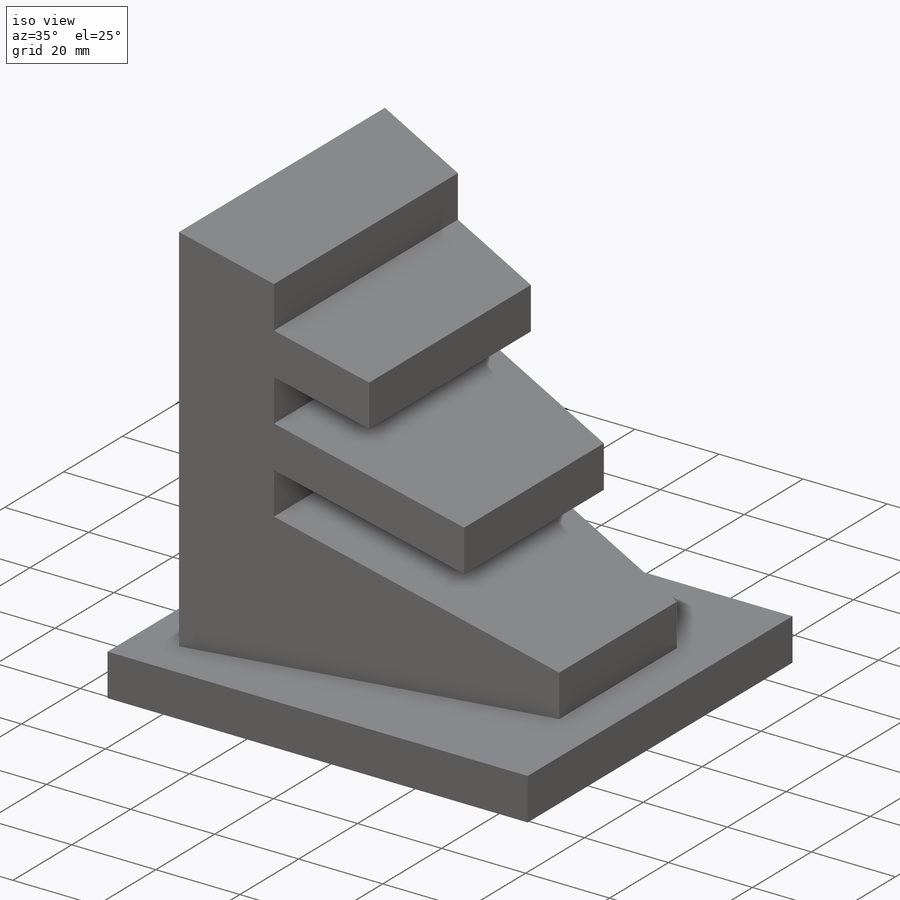
[diagram: iso view]
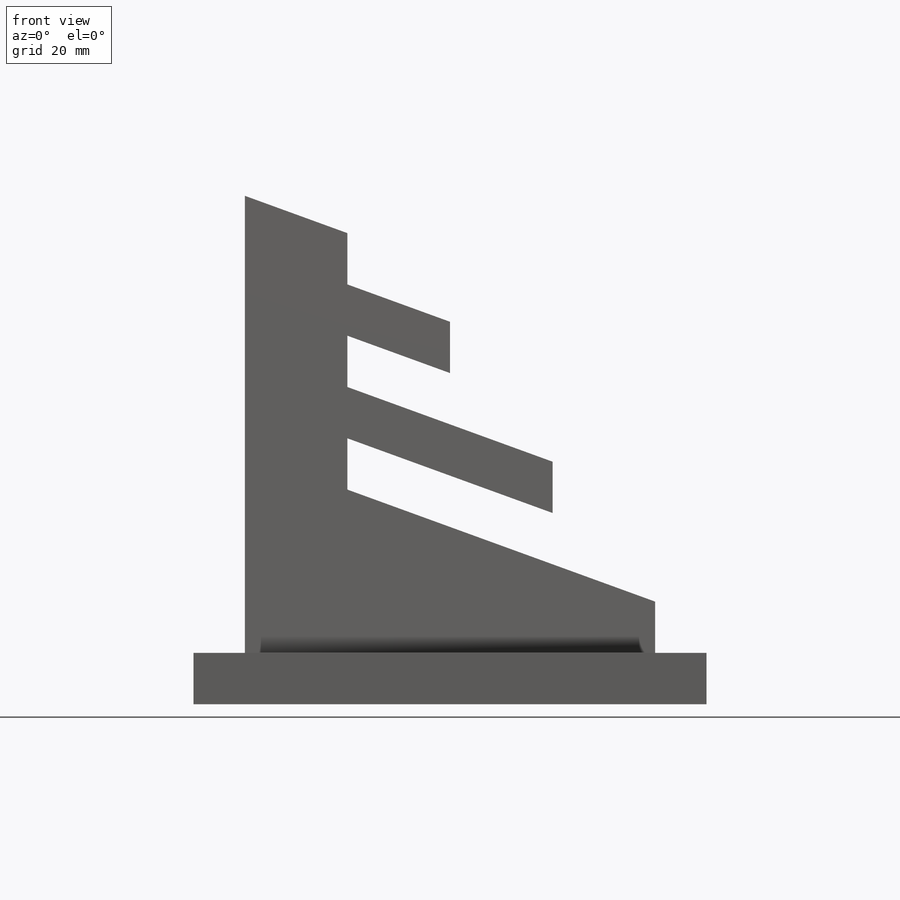
[diagram: front view]
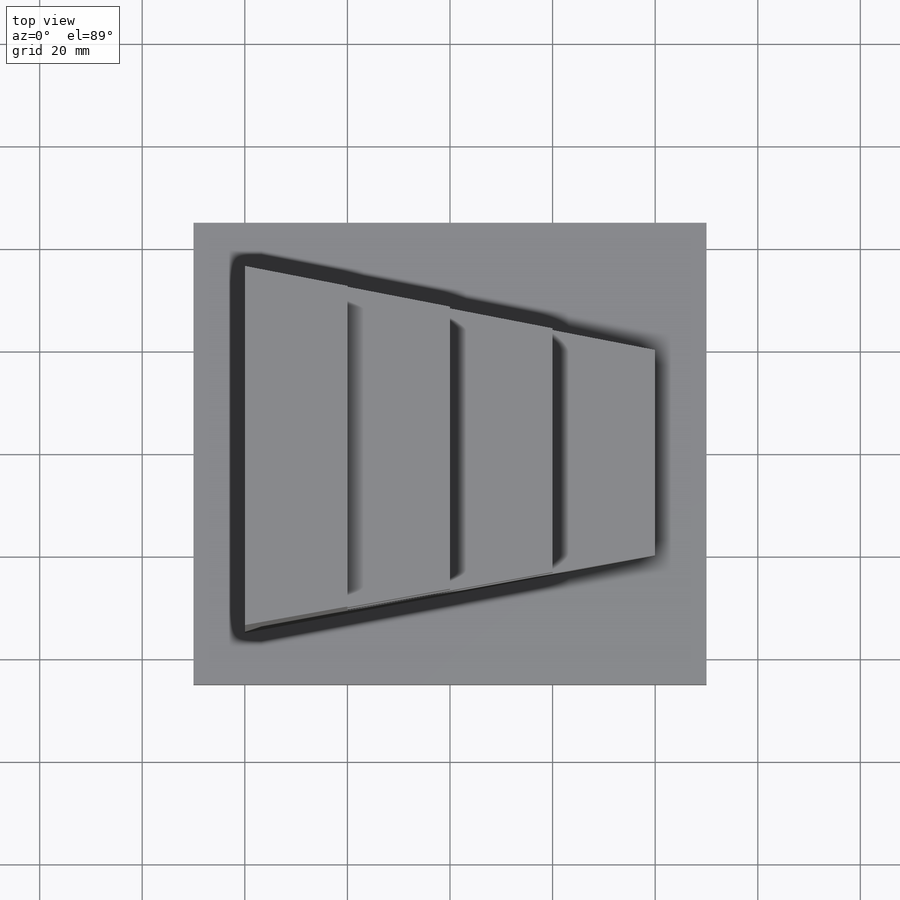
[diagram: top view]
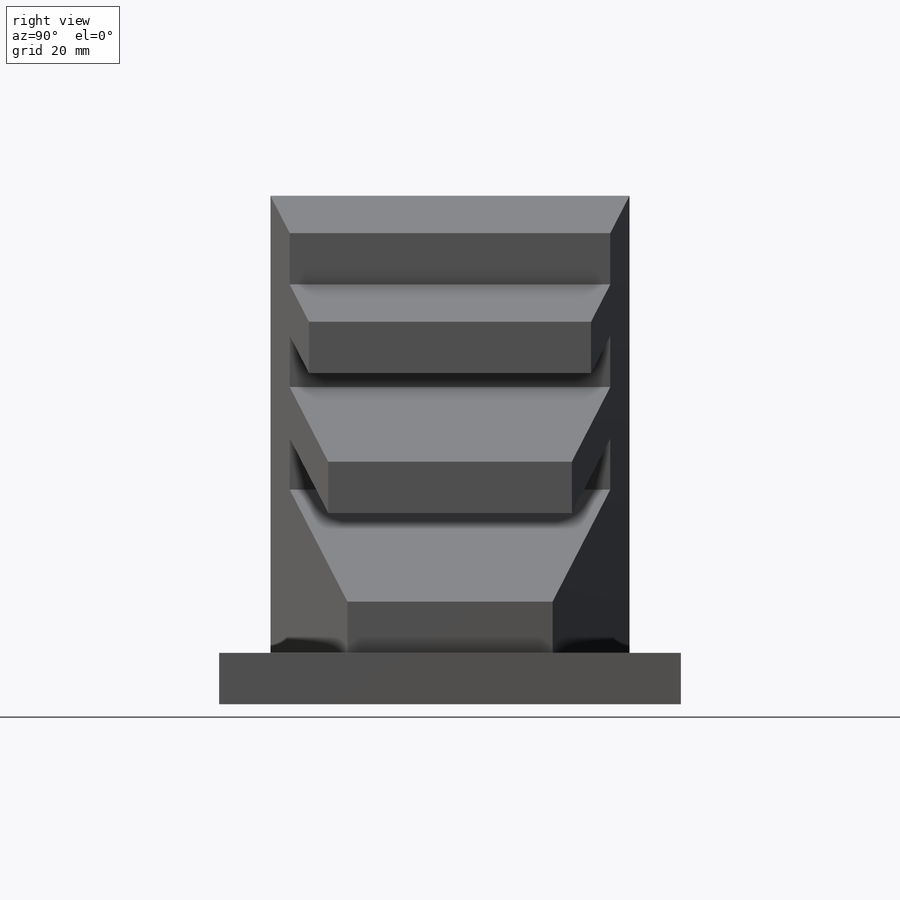
[diagram: right view]
SOLIDWORKS PART (.sldprt)
format: sldprt  version: not decoded by parser v0  size: 285,696 bytes
history: native  units: mm
features: sketch x3, extrude x2, material x1, cut_extrude x1 (+16 scaffold rows collapsed)
feature tree (23):
  scaffold x16  (default folders/planes/origin — collapsed)
  material  "Material <not specified>"
  sketch  "Sketch1"  dims[D1=90.0mm D2=100.0mm D3=10.0mm D4=25.0mm]
  extrude  "Extrude1"  Depth=10mm
  sketch  "Sketch2"  dims[c1.D1=40.0mm c1.D2=80.0mm c1.D3=10.0mm c1.D4=10.0mm c1.D5=80.0mm c1.D6=80.0mm c2.D6=20.0deg c2.D7=10.0mm c2.D8=20.0mm c2.D9=50.0mm c2.D10=~89.117619mm]
  extrude  "Extrude2"  Depth=89.118mm
  sketch  "Sketch3"  dims[c1.D1=~61.291349mm c2.D1=20.0deg c2.D2=20.0mm c2.D3=10.0mm c2.D4=10.0mm c2.D5=10.0mm c2.D6=10.0mm c2.D7=10.0mm c2.D8=20.0mm c2.D9=20.0mm c2.D10=20.0mm c2.D11=10.0mm c3.D1=20.0mm c3.D2=20.0mm c3.D3=20.0mm c3.D8=~21.283555mm c4.D8=20.0deg c4.D9=10.0mm]
  cut_extrude  "Extrude3"  Depth=129.118mm
decode coverage: 6 of 6 modeling features carry decoded parameters
note: ~ marks probable driven/reference dimensions
note: suppression state not decoded; provenance and decode notes live in map.json
